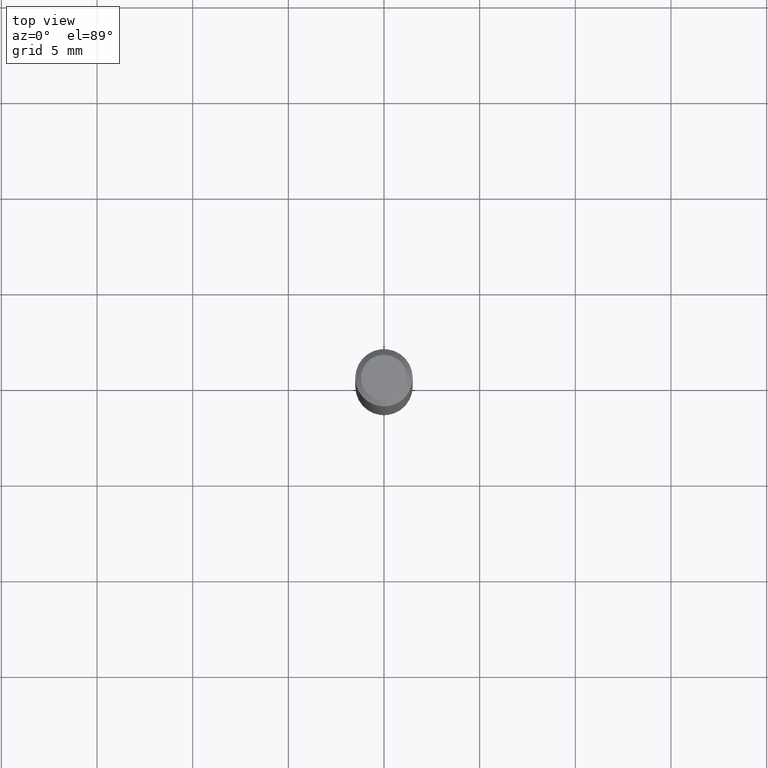
[diagram: clean part render]
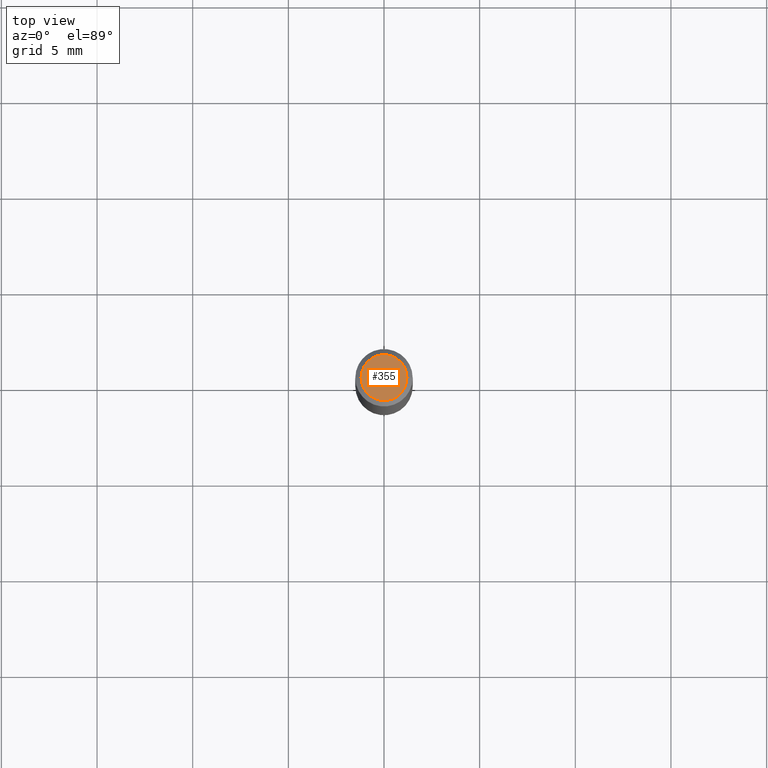
[diagram: same view with one face highlighted and labeled with its STEP entity id]
A machine part, top view. The second image highlights one B-rep face of the part: STEP entity #355.
In plain terms, the highlighted planar face has unit normal (0, -0, -1).
Its self-contained STEP definition (entity closure, byte-faithful):
#8 = AXIS2_PLACEMENT_3D ( 'NONE', #250, #59, #43 ) ;
#21 = CIRCLE ( 'NONE', #8, 0.04724000000000000421 ) ;
#23 = FACE_OUTER_BOUND ( 'NONE', #422, .T. ) ;
#32 = CARTESIAN_POINT ( 'NONE',  ( 8.265746106709734507E-48, -1.180129479067563789E-33, -3.380025165646692144E-19 ) ) ;
#43 = DIRECTION ( 'NONE',  ( 1.000000000000000000, -6.982962677686266711E-15, 4.876185090822587894E-29 ) ) ;
#59 = DIRECTION ( 'NONE',  ( -2.445468806185136597E-29, 3.491481338843145583E-15, 1.000000000000000000 ) ) ;
#111 = AXIS2_PLACEMENT_3D ( 'NONE', #128, #400, #167 ) ;
#119 = ORIENTED_EDGE ( 'NONE', *, *, #432, .T. ) ;
#128 = CARTESIAN_POINT ( 'NONE',  ( 4.132873053354867254E-48, -5.900647395337818946E-34, -1.690012582823346072E-19 ) ) ;
#167 = DIRECTION ( 'NONE',  ( -1.000000000000000000, 6.982962677686265922E-15, -4.876176775795935793E-29 ) ) ;
#168 = CARTESIAN_POINT ( 'NONE',  ( -0.04724000000000000421, 3.504923541997677355E-16, -3.380025165670481712E-19 ) ) ;
#173 = CARTESIAN_POINT ( 'NONE',  ( 0.04724000000000000421, -3.852183633974369345E-16, -3.380025165621689721E-19 ) ) ;
#176 = DIRECTION ( 'NONE',  ( -2.445468806185136597E-29, 3.491481338843145583E-15, 1.000000000000000000 ) ) ;
#214 = PLANE ( 'NONE',  #111 ) ;
#228 = AXIS2_PLACEMENT_3D ( 'NONE', #32, #176, #477 ) ;
#250 = CARTESIAN_POINT ( 'NONE',  ( 8.265746106709734507E-48, -1.180129479067563789E-33, -3.380025165646692144E-19 ) ) ;
#280 = EDGE_CURVE ( 'NONE', #365, #300, #467, .T. ) ;
#300 = VERTEX_POINT ( 'NONE', #168 ) ;
#355 = ADVANCED_FACE ( 'NONE', ( #23 ), #214, .F. ) ;
#365 = VERTEX_POINT ( 'NONE', #173 ) ;
#400 = DIRECTION ( 'NONE',  ( 2.438088387897960049E-29, -3.491481338843145188E-15, -1.000000000000000000 ) ) ;
#422 = EDGE_LOOP ( 'NONE', ( #119, #451 ) ) ;
#432 = EDGE_CURVE ( 'NONE', #300, #365, #21, .T. ) ;
#451 = ORIENTED_EDGE ( 'NONE', *, *, #280, .T. ) ;
#467 = CIRCLE ( 'NONE', #228, 0.04724000000000000421 ) ;
#477 = DIRECTION ( 'NONE',  ( 1.000000000000000000, -6.982962677686266711E-15, 4.876185090822587894E-29 ) ) ;